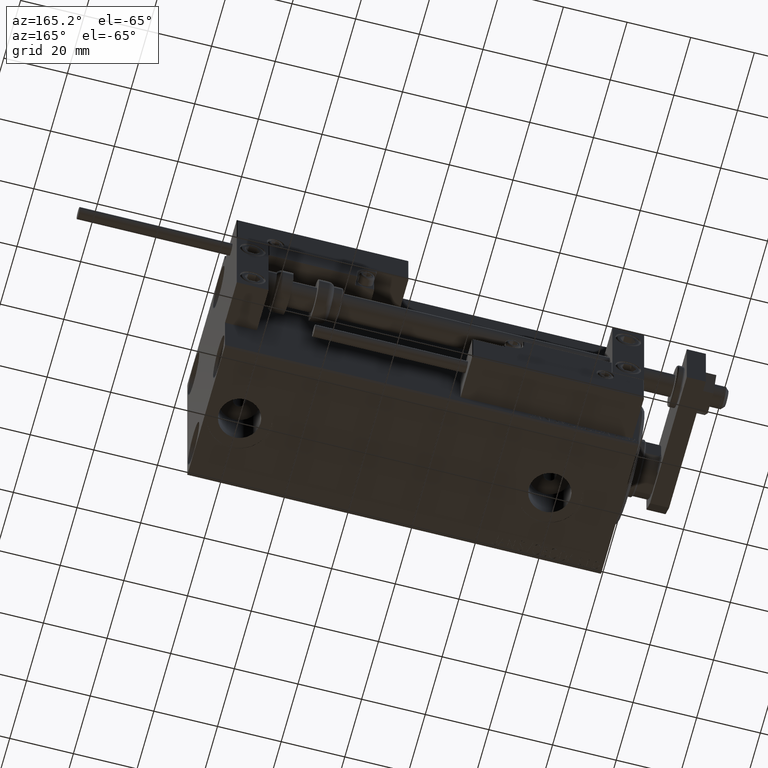
[diagram: clean part render]
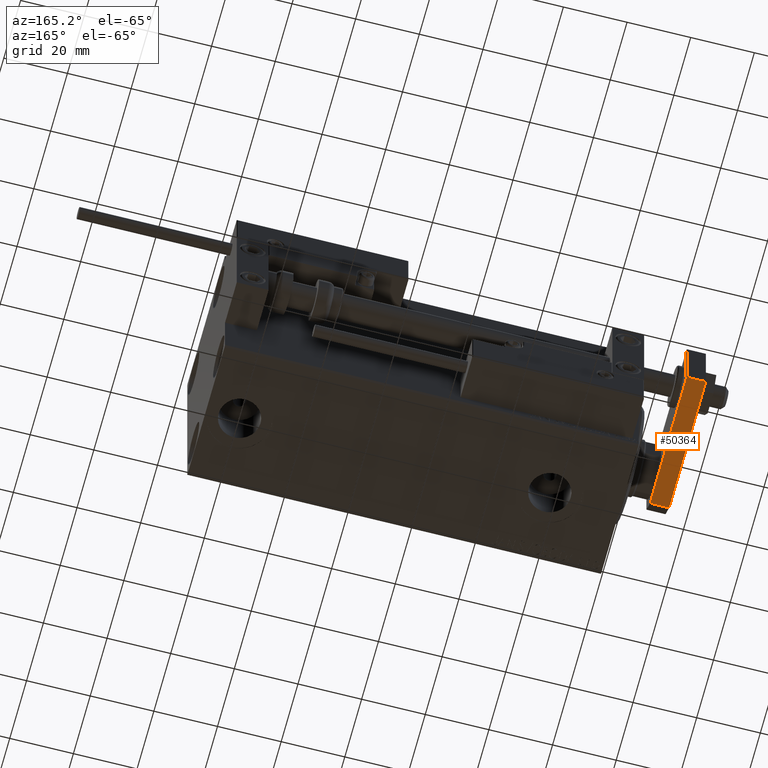
[diagram: same view with one face highlighted and labeled with its STEP entity id]
A machine part, auxiliary view. The second image highlights one B-rep face of the part: STEP entity #50364.
In plain terms, the highlighted planar face has unit normal (0, -0, 1).
Its self-contained STEP definition (entity closure, byte-faithful):
#817 = VERTEX_POINT ( 'NONE', #15158 ) ;
#3452 = DIRECTION ( 'NONE',  ( -1.084202172485504434E-16, -1.000000000000000000, 0.000000000000000000 ) ) ;
#3487 = CARTESIAN_POINT ( 'NONE',  ( -10.00000000000000000, 48.00000000000000000, 6.000000000000000000 ) ) ;
#3541 = DIRECTION ( 'NONE',  ( -1.084202172485504434E-16, -1.000000000000000000, 0.000000000000000000 ) ) ;
#4201 = CARTESIAN_POINT ( 'NONE',  ( -10.00000000000000000, 48.00000000000000000, 6.000000000000000000 ) ) ;
#5746 = CARTESIAN_POINT ( 'NONE',  ( -10.00000000000000533, 4.240000000000021529, 6.000000000000000000 ) ) ;
#15158 = CARTESIAN_POINT ( 'NONE',  ( -10.00000000000000000, 48.00000000000000000, 6.000000000000000000 ) ) ;
#15790 = VERTEX_POINT ( 'NONE', #5746 ) ;
#16380 = DIRECTION ( 'NONE',  ( 1.000000000000000000, -1.084202172485504434E-16, 0.000000000000000000 ) ) ;
#18510 = DIRECTION ( 'NONE',  ( -0.000000000000000000, -0.000000000000000000, -1.000000000000000000 ) ) ;
#20201 = PLANE ( 'NONE',  #44934 ) ;
#21325 = ORIENTED_EDGE ( 'NONE', *, *, #39555, .F. ) ;
#22822 = EDGE_LOOP ( 'NONE', ( #47519, #50250, #21325, #46261 ) ) ;
#23079 = LINE ( 'NONE', #3487, #43199 ) ;
#23510 = CARTESIAN_POINT ( 'NONE',  ( -10.00000000000000533, 4.240000000000021529, 6.000000000000000000 ) ) ;
#29343 = EDGE_CURVE ( 'NONE', #49679, #47240, #37643, .T. ) ;
#29725 = EDGE_CURVE ( 'NONE', #817, #49679, #23079, .T. ) ;
#31631 = LINE ( 'NONE', #23510, #44132 ) ;
#34264 = VECTOR ( 'NONE', #3541, 1000.000000000000000 ) ;
#34831 = CARTESIAN_POINT ( 'NONE',  ( -10.00000000000000000, 48.00000000000000000, 0.000000000000000000 ) ) ;
#37324 = CARTESIAN_POINT ( 'NONE',  ( -10.00000000000000000, 48.00000000000000000, 0.000000000000000000 ) ) ;
#37346 = VECTOR ( 'NONE', #3452, 1000.000000000000000 ) ;
#37643 = LINE ( 'NONE', #34831, #34264 ) ;
#39057 = LINE ( 'NONE', #4201, #37346 ) ;
#39555 = EDGE_CURVE ( 'NONE', #817, #15790, #39057, .T. ) ;
#41652 = CARTESIAN_POINT ( 'NONE',  ( -10.00000000000000533, 4.240000000000021529, 0.000000000000000000 ) ) ;
#43199 = VECTOR ( 'NONE', #18510, 1000.000000000000000 ) ;
#44132 = VECTOR ( 'NONE', #46921, 1000.000000000000000 ) ;
#44367 = FACE_OUTER_BOUND ( 'NONE', #22822, .T. ) ;
#44934 = AXIS2_PLACEMENT_3D ( 'NONE', #47436, #16380, #48193 ) ;
#46261 = ORIENTED_EDGE ( 'NONE', *, *, #29725, .T. ) ;
#46921 = DIRECTION ( 'NONE',  ( 0.000000000000000000, 0.000000000000000000, 1.000000000000000000 ) ) ;
#47240 = VERTEX_POINT ( 'NONE', #41652 ) ;
#47436 = CARTESIAN_POINT ( 'NONE',  ( -10.00000000000000000, 48.00000000000000000, 6.000000000000000000 ) ) ;
#47519 = ORIENTED_EDGE ( 'NONE', *, *, #29343, .T. ) ;
#48193 = DIRECTION ( 'NONE',  ( 1.084202172485504434E-16, 1.000000000000000000, 0.000000000000000000 ) ) ;
#49679 = VERTEX_POINT ( 'NONE', #37324 ) ;
#50178 = EDGE_CURVE ( 'NONE', #47240, #15790, #31631, .T. ) ;
#50250 = ORIENTED_EDGE ( 'NONE', *, *, #50178, .T. ) ;
#50364 = ADVANCED_FACE ( 'NONE', ( #44367 ), #20201, .F. ) ;